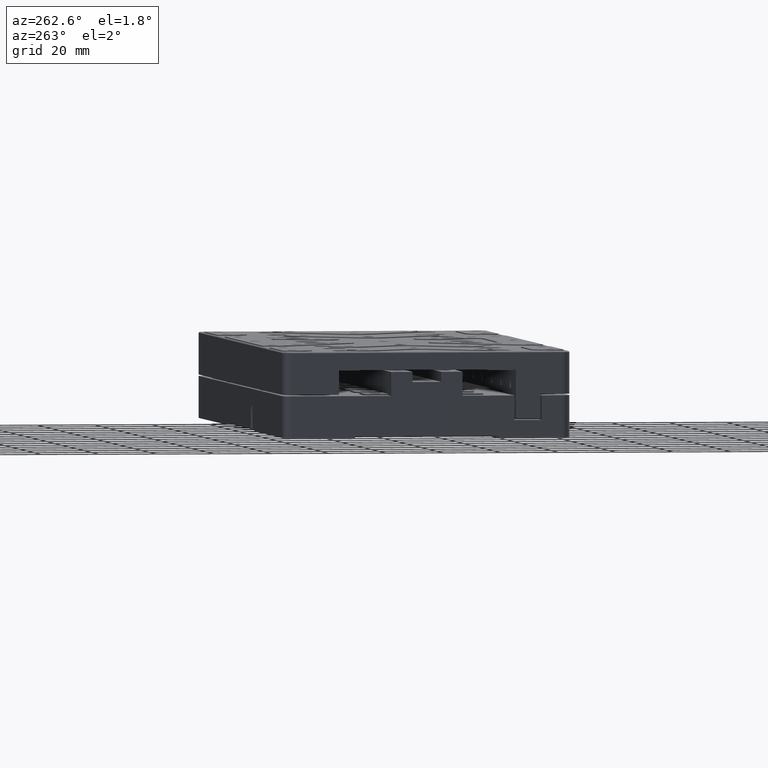
[diagram: clean part render]
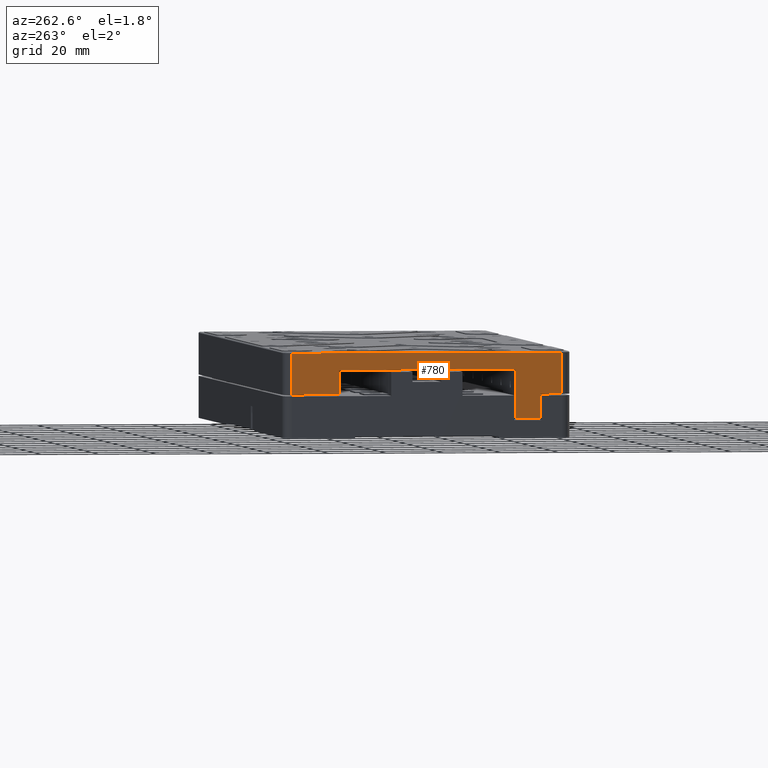
[diagram: same view with one face highlighted and labeled with its STEP entity id]
A machine part, auxiliary view. The second image highlights one B-rep face of the part: STEP entity #780.
In plain terms, the highlighted planar face has unit normal (1, 0, 0).
Its self-contained STEP definition (entity closure, byte-faithful):
#130 = DIRECTION ( 'NONE',  ( -0.000000000000000000, 1.000000000000000000, 0.000000000000000000 ) ) ;
#289 = EDGE_CURVE ( 'NONE', #6462, #23692, #7710, .T. ) ;
#530 = ORIENTED_EDGE ( 'NONE', *, *, #289, .F. ) ;
#706 = VERTEX_POINT ( 'NONE', #25459 ) ;
#780 = ADVANCED_FACE ( 'NONE', ( #15345 ), #6818, .F. ) ;
#2411 = VECTOR ( 'NONE', #130, 1000.000000000000000 ) ;
#2669 = CARTESIAN_POINT ( 'NONE',  ( -115.0000000000000000, -46.99995294994537431, 5.299950502080001513 ) ) ;
#3394 = EDGE_CURVE ( 'NONE', #4595, #17385, #7105, .T. ) ;
#3777 = LINE ( 'NONE', #10314, #19920 ) ;
#4595 = VERTEX_POINT ( 'NONE', #13047 ) ;
#4961 = DIRECTION ( 'NONE',  ( -0.000000000000000000, 1.000000000000000000, 0.000000000000000000 ) ) ;
#5599 = DIRECTION ( 'NONE',  ( 0.000000000000000000, -1.000000000000000000, 0.000000000000000000 ) ) ;
#5925 = EDGE_CURVE ( 'NONE', #26825, #4595, #24033, .T. ) ;
#5992 = CARTESIAN_POINT ( 'NONE',  ( -115.0000000000000000, 0.000000000000000000, 0.5000000000000000000 ) ) ;
#6462 = VERTEX_POINT ( 'NONE', #11030 ) ;
#6818 = PLANE ( 'NONE',  #20188 ) ;
#6829 = LINE ( 'NONE', #17791, #13714 ) ;
#6994 = ORIENTED_EDGE ( 'NONE', *, *, #5925, .F. ) ;
#7105 = LINE ( 'NONE', #23442, #21224 ) ;
#7198 = EDGE_CURVE ( 'NONE', #706, #27342, #18886, .T. ) ;
#7710 = LINE ( 'NONE', #5992, #19727 ) ;
#8307 = CARTESIAN_POINT ( 'NONE',  ( -115.0000000000000000, 30.60000000000000142, 0.000000000000000000 ) ) ;
#8785 = LINE ( 'NONE', #10920, #21093 ) ;
#9317 = CARTESIAN_POINT ( 'NONE',  ( -115.0000000000000000, -31.00000000000000000, -8.000000000000000000 ) ) ;
#9444 = LINE ( 'NONE', #11735, #16322 ) ;
#9504 = ORIENTED_EDGE ( 'NONE', *, *, #23726, .F. ) ;
#9570 = CARTESIAN_POINT ( 'NONE',  ( -115.0000000000000000, -39.50000000000000000, 0.5000000000000000000 ) ) ;
#9619 = CARTESIAN_POINT ( 'NONE',  ( -114.9999999988931449, -46.99990589989074863, 10.09990100416000303 ) ) ;
#10314 = CARTESIAN_POINT ( 'NONE',  ( -115.0000000000000000, 47.00000000000000000, 0.5000000000000000000 ) ) ;
#10351 = CARTESIAN_POINT ( 'NONE',  ( -115.0000000000000000, -31.00000000000000000, 0.000000000000000000 ) ) ;
#10920 = CARTESIAN_POINT ( 'NONE',  ( -115.0000000000000000, -39.50000000000000000, 0.000000000000000000 ) ) ;
#11030 = CARTESIAN_POINT ( 'NONE',  ( -115.0000000000000000, 30.60000000000000142, 0.5000000000000000000 ) ) ;
#11069 = CARTESIAN_POINT ( 'NONE',  ( -115.0000000000000000, 0.000000000000000000, 0.000000000000000000 ) ) ;
#11660 = ORIENTED_EDGE ( 'NONE', *, *, #15633, .F. ) ;
#11735 = CARTESIAN_POINT ( 'NONE',  ( -115.0000000000000000, 0.000000000000000000, 14.89999999999996838 ) ) ;
#11752 = EDGE_LOOP ( 'NONE', ( #6994, #27949, #9504, #19600, #27976, #14798, #11660, #530, #19239, #20354 ) ) ;
#11775 = CARTESIAN_POINT ( 'NONE',  ( -115.0000742408832650, -46.99985884517874979, 14.89985131649917882 ) ) ;
#12014 = EDGE_CURVE ( 'NONE', #21092, #706, #9444, .T. ) ;
#12574 = LINE ( 'NONE', #8307, #24293 ) ;
#13047 = CARTESIAN_POINT ( 'NONE',  ( -115.0000000000000000, -31.00000000000000000, 9.000000000000001776 ) ) ;
#13714 = VECTOR ( 'NONE', #4961, 1000.000000000000000 ) ;
#14672 = DIRECTION ( 'NONE',  ( -0.000000000000000000, 1.000000000000000000, 0.000000000000000000 ) ) ;
#14798 = ORIENTED_EDGE ( 'NONE', *, *, #12014, .F. ) ;
#14810 = CARTESIAN_POINT ( 'NONE',  ( -115.0000000000000000, -47.00000000000000000, 0.5000000000000002220 ) ) ;
#15345 = FACE_OUTER_BOUND ( 'NONE', #11752, .T. ) ;
#15633 = EDGE_CURVE ( 'NONE', #23692, #21092, #3777, .T. ) ;
#16322 = VECTOR ( 'NONE', #5599, 1000.000000000000000 ) ;
#17062 = DIRECTION ( 'NONE',  ( 1.000000000000000000, 0.000000000000000000, 0.000000000000000000 ) ) ;
#17385 = VERTEX_POINT ( 'NONE', #21183 ) ;
#17484 = DIRECTION ( 'NONE',  ( 0.000000000000000000, 0.000000000000000000, -1.000000000000000000 ) ) ;
#17791 = CARTESIAN_POINT ( 'NONE',  ( -115.0000000000000000, 0.000000000000000000, -8.000000000000000000 ) ) ;
#18622 = CARTESIAN_POINT ( 'NONE',  ( -115.0000000000000000, -39.50000000000000000, -8.000000000000000000 ) ) ;
#18886 = B_SPLINE_CURVE_WITH_KNOTS ( 'NONE', 3,
 ( #11775, #9619, #2669, #24324 ),
 .UNSPECIFIED., .F., .F.,
 ( 4, 4 ),
 ( 0.000000000000000000, 1.000000000000000000 ),
 .UNSPECIFIED. ) ;
#19051 = DIRECTION ( 'NONE',  ( -0.000000000000000000, -0.000000000000000000, 1.000000000000000000 ) ) ;
#19223 = LINE ( 'NONE', #19505, #2411 ) ;
#19239 = ORIENTED_EDGE ( 'NONE', *, *, #24093, .F. ) ;
#19334 = CARTESIAN_POINT ( 'NONE',  ( -115.0000000000000000, 47.00000000000000000, 0.5000000000000002220 ) ) ;
#19505 = CARTESIAN_POINT ( 'NONE',  ( -115.0000000000000000, 0.000000000000000000, 0.5000000000000000000 ) ) ;
#19600 = ORIENTED_EDGE ( 'NONE', *, *, #23240, .F. ) ;
#19727 = VECTOR ( 'NONE', #14672, 1000.000000000000000 ) ;
#19892 = VERTEX_POINT ( 'NONE', #9570 ) ;
#19920 = VECTOR ( 'NONE', #21573, 1000.000000000000114 ) ;
#20171 = EDGE_CURVE ( 'NONE', #26671, #26825, #6829, .T. ) ;
#20188 = AXIS2_PLACEMENT_3D ( 'NONE', #11069, #17062, #21337 ) ;
#20354 = ORIENTED_EDGE ( 'NONE', *, *, #3394, .F. ) ;
#21092 = VERTEX_POINT ( 'NONE', #26126 ) ;
#21093 = VECTOR ( 'NONE', #17484, 1000.000000000000000 ) ;
#21183 = CARTESIAN_POINT ( 'NONE',  ( -115.0000000000000000, 30.60000000000000142, 9.000000000000001776 ) ) ;
#21224 = VECTOR ( 'NONE', #25302, 1000.000000000000000 ) ;
#21337 = DIRECTION ( 'NONE',  ( 0.000000000000000000, 0.000000000000000000, -1.000000000000000000 ) ) ;
#21573 = DIRECTION ( 'NONE',  ( 0.000000000000000000, -9.802680946297762037E-06, 0.9999999999519536553 ) ) ;
#21817 = VECTOR ( 'NONE', #19051, 1000.000000000000000 ) ;
#23240 = EDGE_CURVE ( 'NONE', #27342, #19892, #19223, .T. ) ;
#23442 = CARTESIAN_POINT ( 'NONE',  ( -115.0000000000000000, -50.00000000000000000, 9.000000000000001776 ) ) ;
#23692 = VERTEX_POINT ( 'NONE', #19334 ) ;
#23726 = EDGE_CURVE ( 'NONE', #19892, #26671, #8785, .T. ) ;
#24033 = LINE ( 'NONE', #10351, #21817 ) ;
#24093 = EDGE_CURVE ( 'NONE', #17385, #6462, #12574, .T. ) ;
#24293 = VECTOR ( 'NONE', #27248, 1000.000000000000000 ) ;
#24324 = CARTESIAN_POINT ( 'NONE',  ( -115.0000000000000000, -47.00000000000000000, 0.5000000000000002220 ) ) ;
#25302 = DIRECTION ( 'NONE',  ( 0.000000000000000000, 1.000000000000000000, 0.000000000000000000 ) ) ;
#25459 = CARTESIAN_POINT ( 'NONE',  ( -115.0000742408832650, -46.99985884517874979, 14.89985131649917882 ) ) ;
#26126 = CARTESIAN_POINT ( 'NONE',  ( -115.0000000000000000, 46.99985884139437786, 14.89999999932247832 ) ) ;
#26671 = VERTEX_POINT ( 'NONE', #18622 ) ;
#26825 = VERTEX_POINT ( 'NONE', #9317 ) ;
#27248 = DIRECTION ( 'NONE',  ( 0.000000000000000000, 0.000000000000000000, -1.000000000000000000 ) ) ;
#27342 = VERTEX_POINT ( 'NONE', #14810 ) ;
#27949 = ORIENTED_EDGE ( 'NONE', *, *, #20171, .F. ) ;
#27976 = ORIENTED_EDGE ( 'NONE', *, *, #7198, .F. ) ;